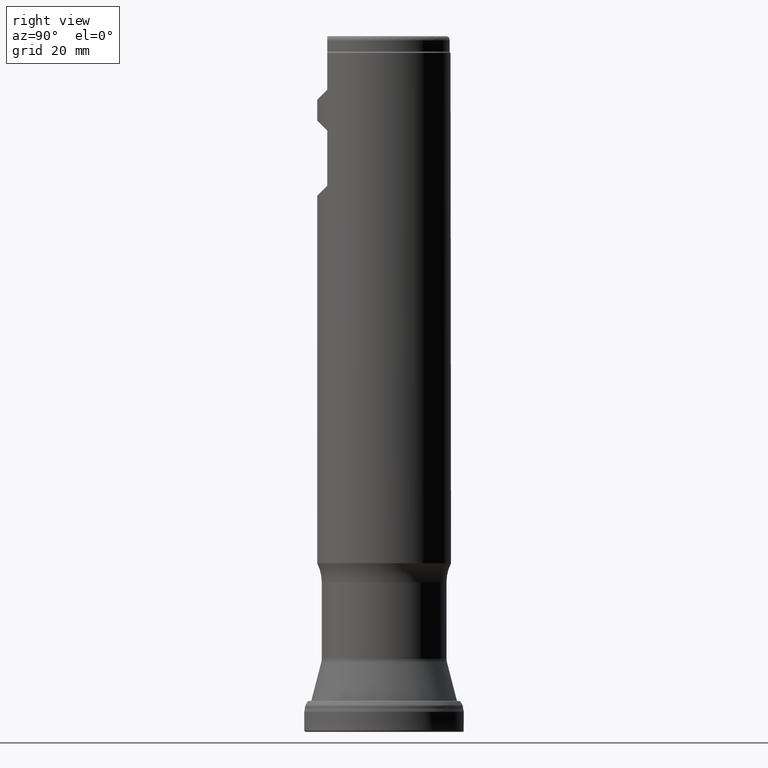
[diagram: clean part render]
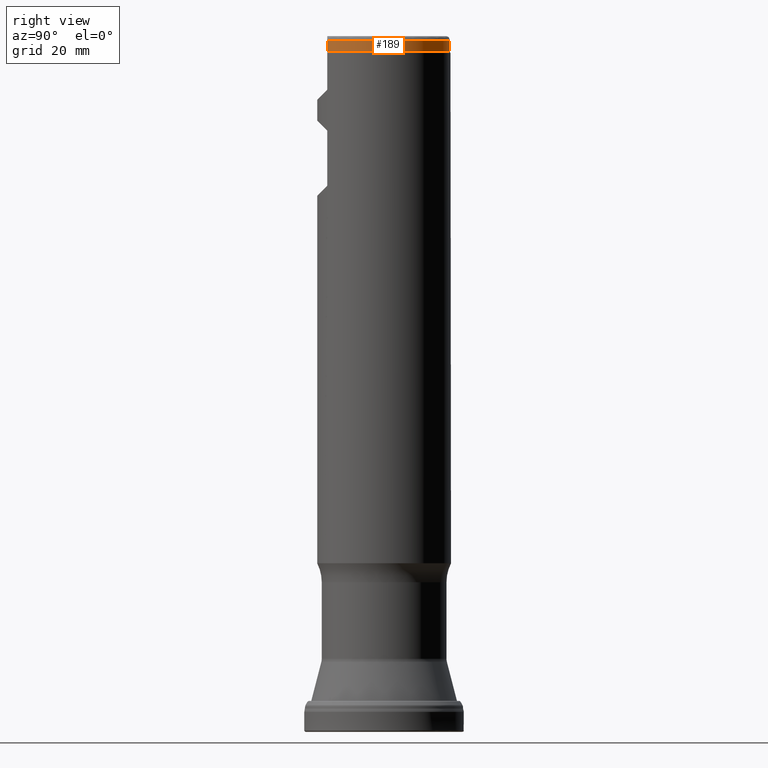
[diagram: same view with one face highlighted and labeled with its STEP entity id]
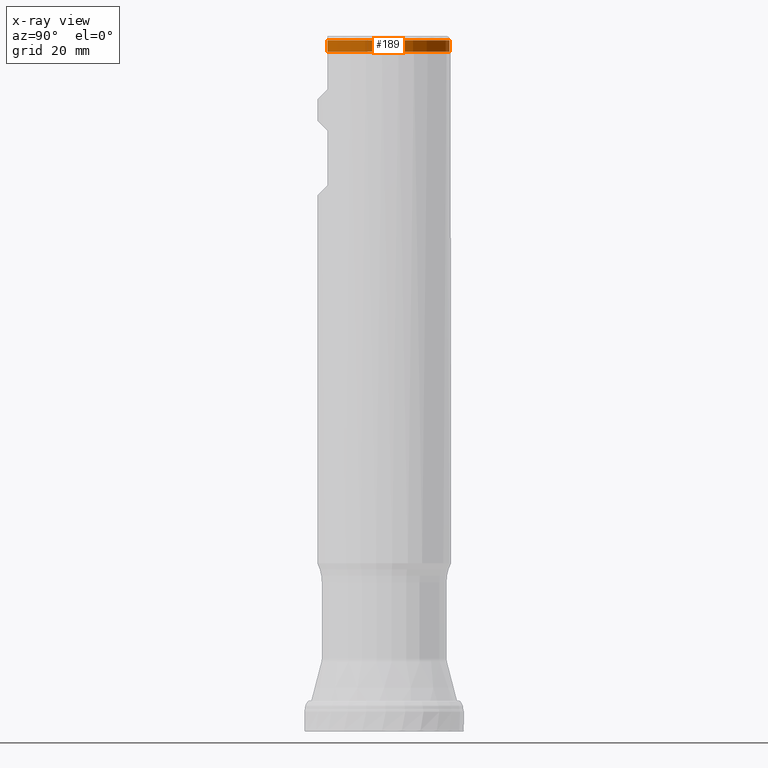
[diagram: x-ray of the same camera — body ghosted, the highlighted face saturated]
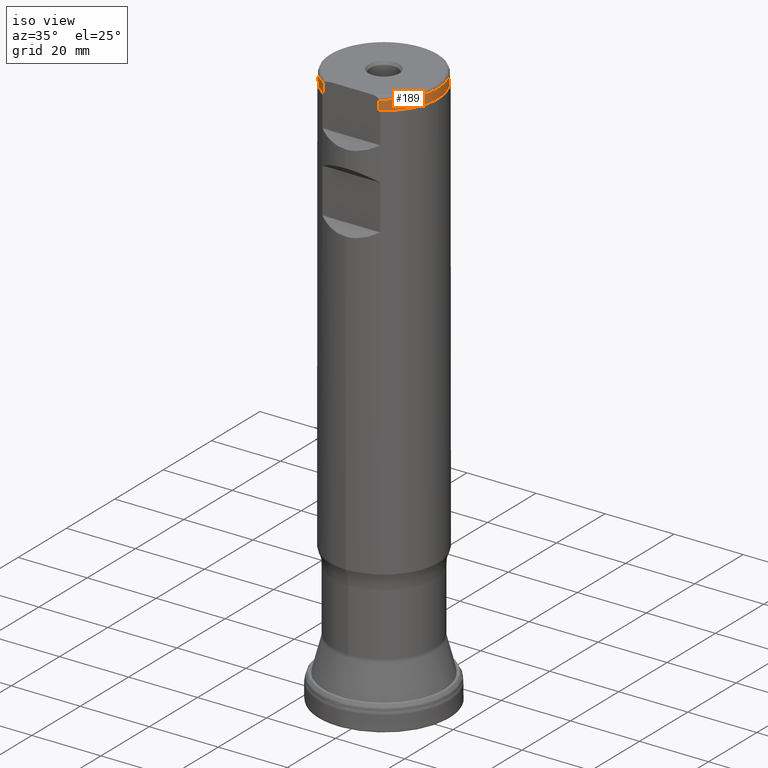
[diagram: same view with one face highlighted and labeled with its STEP entity id]
A machine part, right view. The second image highlights one B-rep face of the part: STEP entity #189.
The next image is the same camera in x-ray: the body ghosted, the highlighted face saturated — about 0% of this face is hidden behind the body in this view.
A second angle (iso view) of the same face is appended — the face is thin or edge-on in the first view.
In plain terms, the highlighted cylindrical surface (partial cylindrical patch) has radius 15.675 mm, axis along (0, 0, 1).
Its self-contained STEP definition (entity closure, byte-faithful):
#177=FACE_OUTER_BOUND('',#373,.T.);
#189=ADVANCED_FACE('',(#177),#239,.T.);
#239=CYLINDRICAL_SURFACE('',#820,15.675);
#248=CIRCLE('',#817,15.675);
#249=CIRCLE('',#819,15.675);
#373=EDGE_LOOP('',(#519,#520,#521,#522));
#463=LINE('',#1398,#482);
#464=LINE('',#1399,#483);
#482=VECTOR('',#910,1.);
#483=VECTOR('',#911,1.);
#519=ORIENTED_EDGE('',*,*,#714,.T.);
#520=ORIENTED_EDGE('',*,*,#715,.T.);
#521=ORIENTED_EDGE('',*,*,#712,.T.);
#522=ORIENTED_EDGE('',*,*,#716,.T.);
#651=VERTEX_POINT('',#1387);
#652=VERTEX_POINT('',#1389);
#653=VERTEX_POINT('',#1396);
#654=VERTEX_POINT('',#1397);
#712=EDGE_CURVE('',#652,#651,#248,.T.);
#714=EDGE_CURVE('',#653,#654,#249,.T.);
#715=EDGE_CURVE('',#654,#652,#463,.T.);
#716=EDGE_CURVE('',#651,#653,#464,.T.);
#817=AXIS2_PLACEMENT_3D('',#1388,#904,#905);
#819=AXIS2_PLACEMENT_3D('',#1395,#908,#909);
#820=AXIS2_PLACEMENT_3D('',#1400,#912,#913);
#904=DIRECTION('',(0.,1.17145536458252E-15,1.));
#905=DIRECTION('',(0.,-1.,1.77069062938621E-15));
#908=DIRECTION('',(0.,-1.17145536458252E-15,-1.));
#909=DIRECTION('',(0.,-1.,1.77069062938621E-15));
#910=DIRECTION('',(0.,-1.17145536458252E-15,-1.));
#911=DIRECTION('',(0.,1.17145536458252E-15,1.));
#912=DIRECTION('',(0.,1.17145536458252E-15,1.));
#913=DIRECTION('',(0.,-1.,1.17145536458252E-15));
#1387=CARTESIAN_POINT('',(-7.98721893026602,-13.4873999999998,161.446410161514));
#1388=CARTESIAN_POINT('',(0.,1.89127263276296E-13,161.446410161514));
#1389=CARTESIAN_POINT('',(7.98721893026602,-13.4873999999998,161.446410161514));
#1395=CARTESIAN_POINT('',(0.,1.92235825327992E-13,164.1));
#1396=CARTESIAN_POINT('',(-7.9872189302887,-13.4873999999998,164.099999999989));
#1397=CARTESIAN_POINT('',(7.98721893026602,-13.4873999999998,164.1));
#1398=CARTESIAN_POINT('',(7.98721893026602,-13.4874,1.57998870842703E-14));
#1399=CARTESIAN_POINT('',(-7.98721893026602,-13.4874,1.57998870842703E-14));
#1400=CARTESIAN_POINT('',(0.,0.,0.));